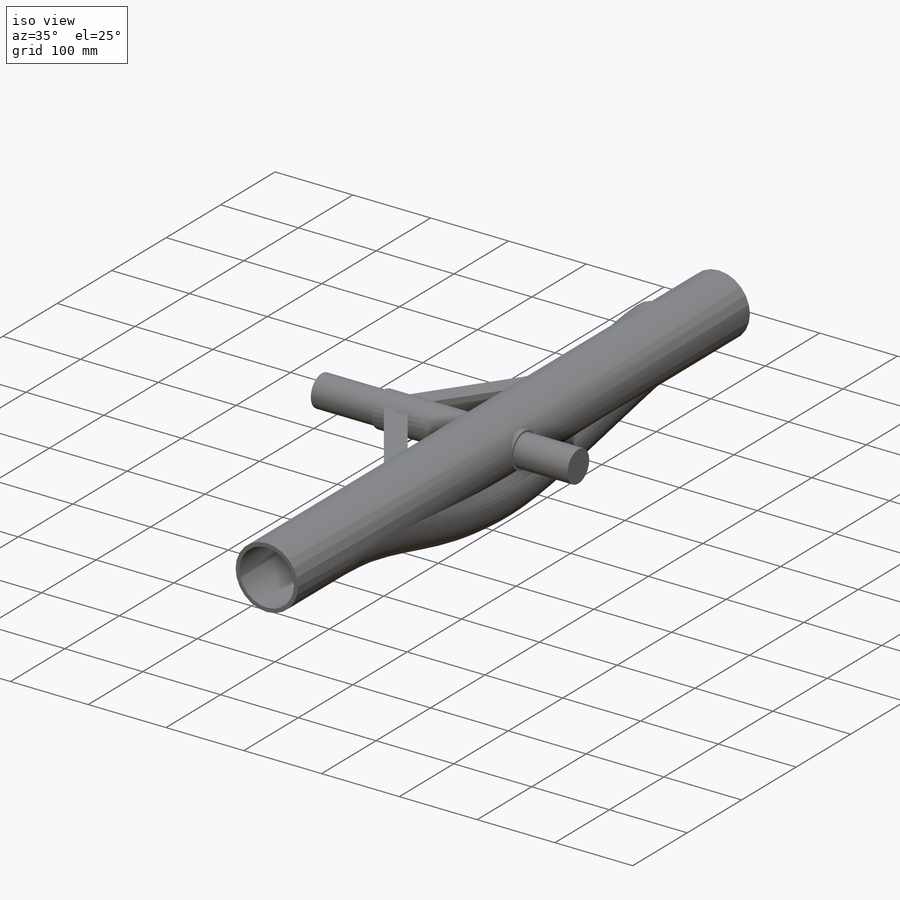
[diagram: iso view]
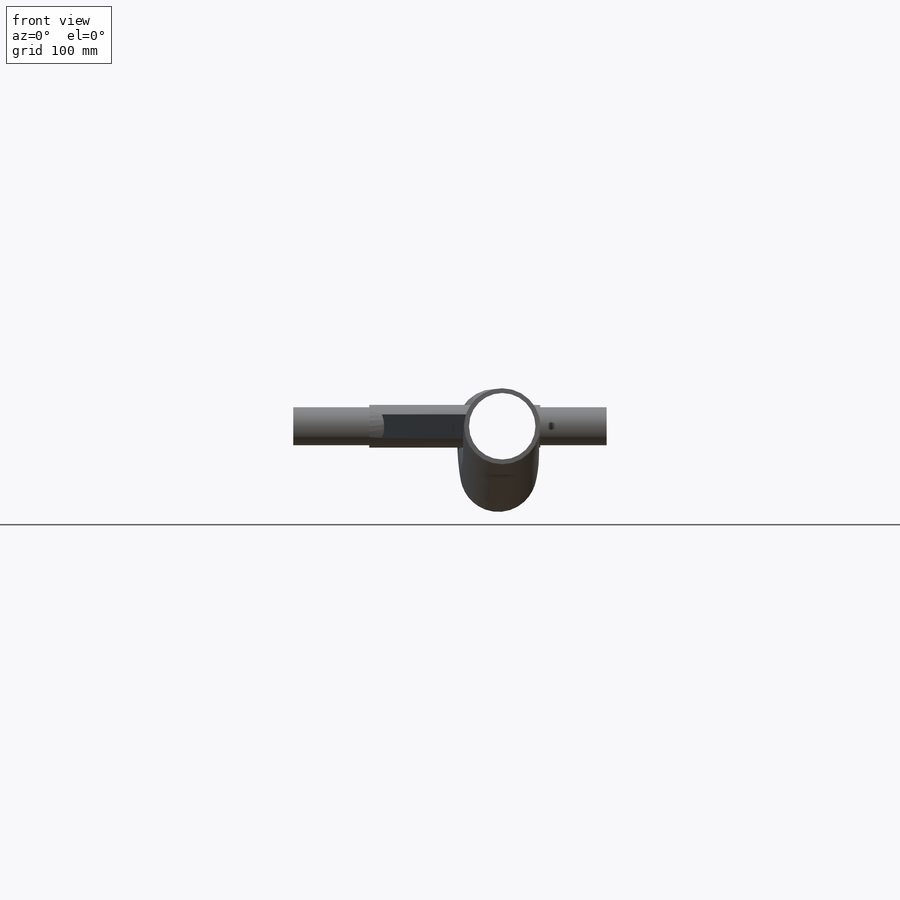
[diagram: front view]
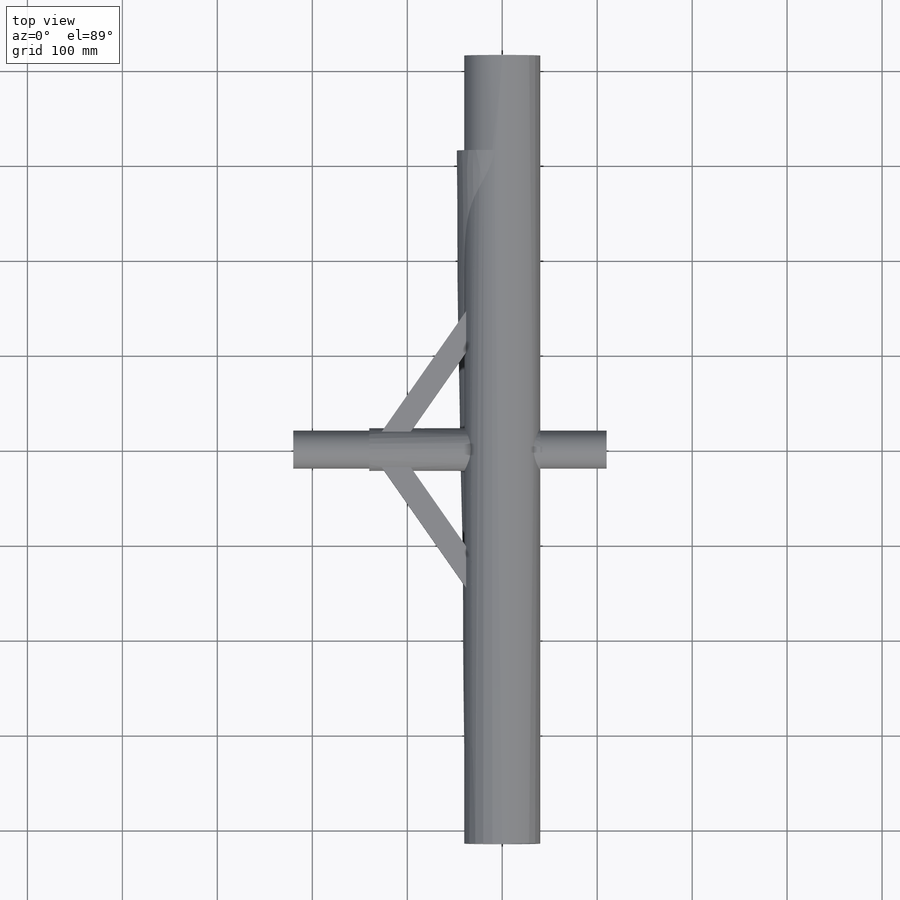
[diagram: top view]
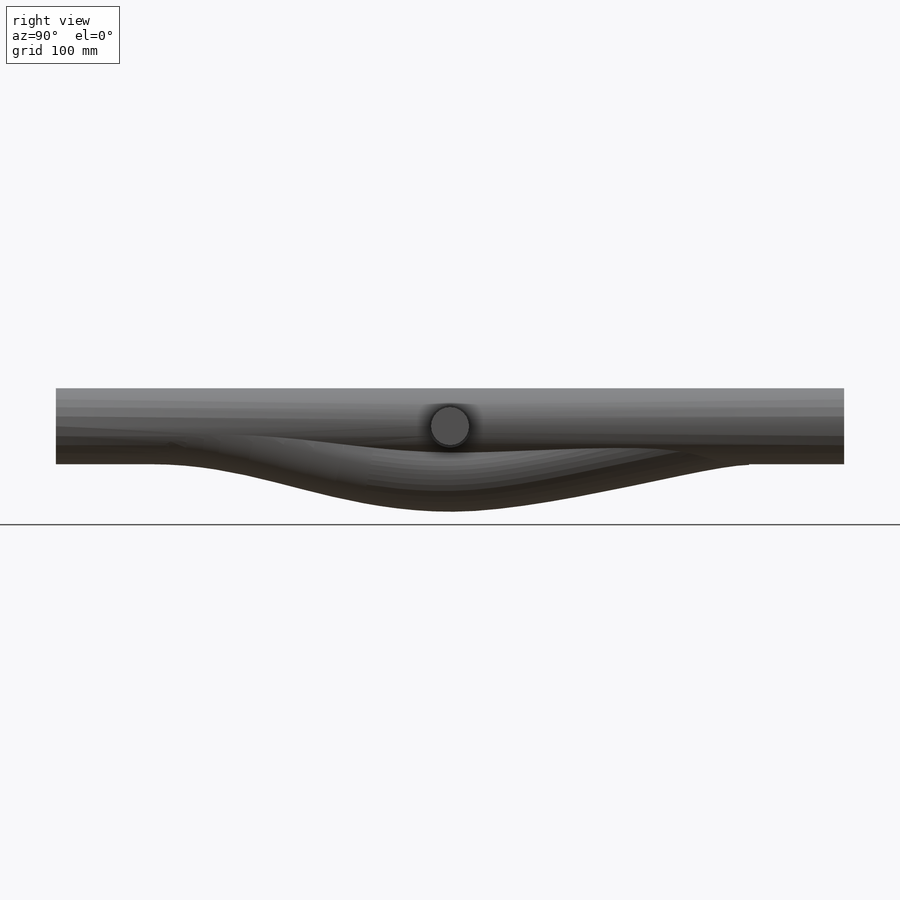
[diagram: right view]
SOLIDWORKS PART (.sldprt)
format: sldprt  version: not decoded by parser v0  size: 277,504 bytes
history: native  units: mm
features: sketch x7, extrude x3, material x1, mirror x1, plane x1, sweep x1, cut_extrude x1 (+13 scaffold rows collapsed)
feature tree (28):
  scaffold x13  (default folders/planes/origin — collapsed)
  material  "Material <not specified>"
  sketch  "Sketch2"  dims[D1=~39.999952mm D2=5.0mm]
  extrude  "Boss-Extrude1"  Depth=830mm
  sketch  "Sketch3"  dims[c1.D1=22.5mm c1.D2=40.0mm c1.D3=40.0mm c2.D1=45.0mm c2.D2=40.0mm c2.D4=5.0mm]
  extrude  "Boss-Extrude2"  Depth=40mm
  sketch  "Sketch5"  dims[D1=40.0mm]
  extrude  "Boss-Extrude3"  Depth=70mm
  sketch  "Sketch6"  dims[c1.D1=40.0mm c1.D2=30.0mm c2.D1=20.0mm c2.D3=150.0mm c3.D1=140.0mm c3.D2=200.0mm c3.D3=25.0mm c4.D1=25.0mm c4.D5=25.0mm c4.D6=1.0mm c4.D7=5.0mm]
  mirror  "Mirror1"
  sketch  "3DSketch1"  dims[c1.D3=~518.864289mm c2.D3=~518.864289mm c3.D3=80.0mm c3.D4=80.0mm c3.D2=80.0mm c3.D1=50.0mm c4.D2=~136.027802mm c4.D3=~120.740073mm c4.D4=~120.740073mm c5.D3=~120.740073mm c5.D4=~120.740073mm c6.D3=~226.947963mm c6.D4=~226.947963mm c7.D3=~108.293787mm c7.D5=100.0mm c7.D2=100.0mm c8.D3=100.0mm c8.D5=40.0mm c8.D6=50.0mm c8.D7=50.0mm]
  plane  "Plane1"
  sketch  "Sketch14"
  sweep  "Sweep1"
  sketch  "Sketch15"
  cut_extrude  "Cut-Extrude4"  [1 undecoded]
decode coverage: 8 of 13 modeling features carry decoded parameters
note: ~ marks probable driven/reference dimensions
note: 1 parameter value undecoded
note: suppression state not decoded; provenance and decode notes live in map.json
